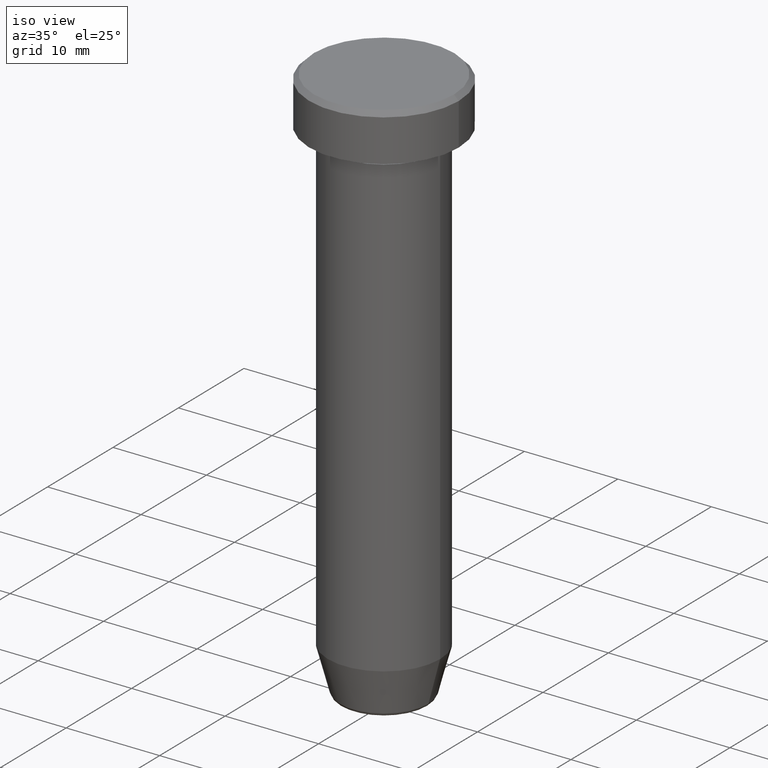
[diagram: clean part render]
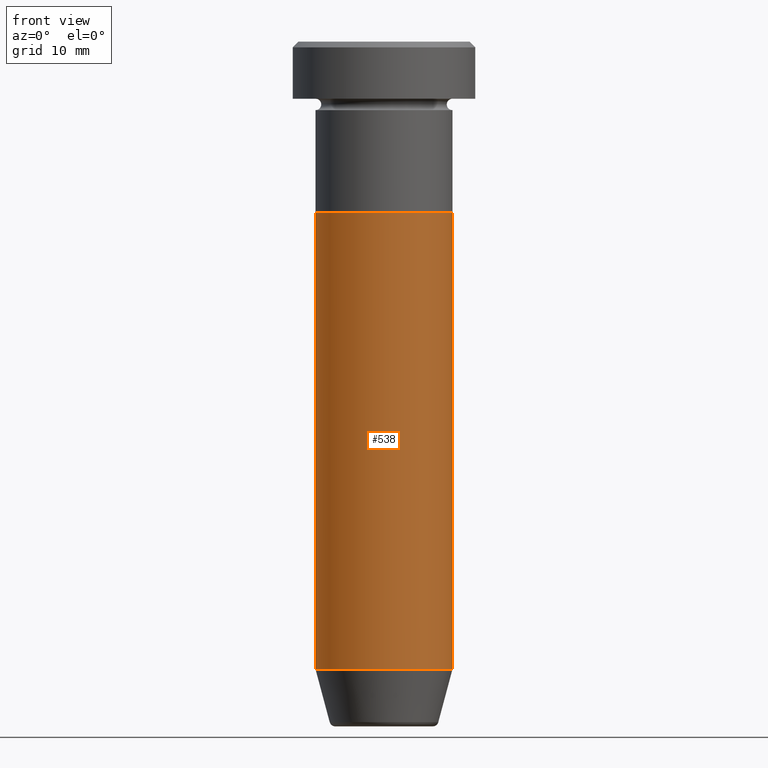
[diagram: tour spotlight — one face highlighted and labeled with its STEP entity id]
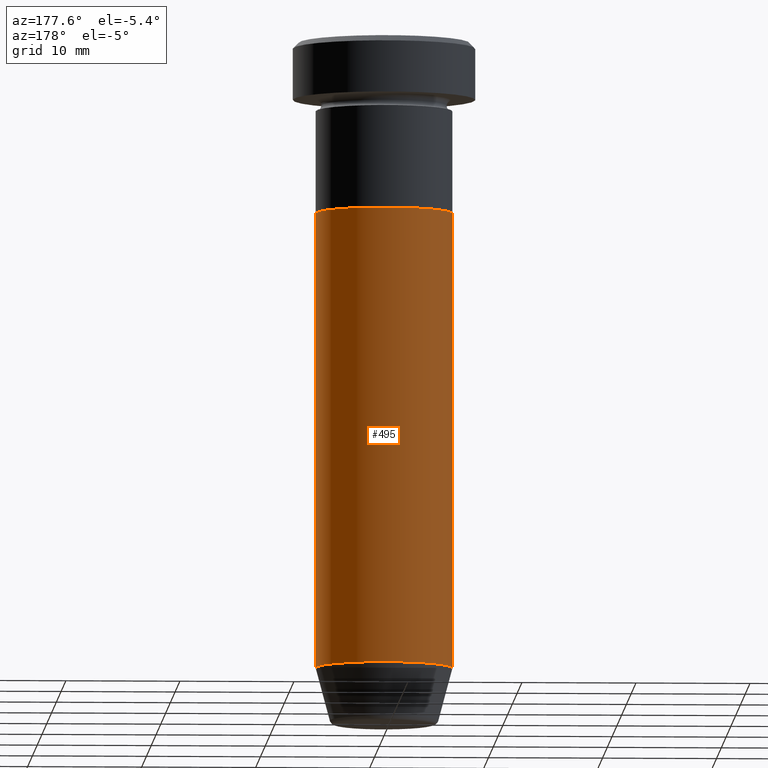
[diagram: tour spotlight — one face highlighted and labeled with its STEP entity id]
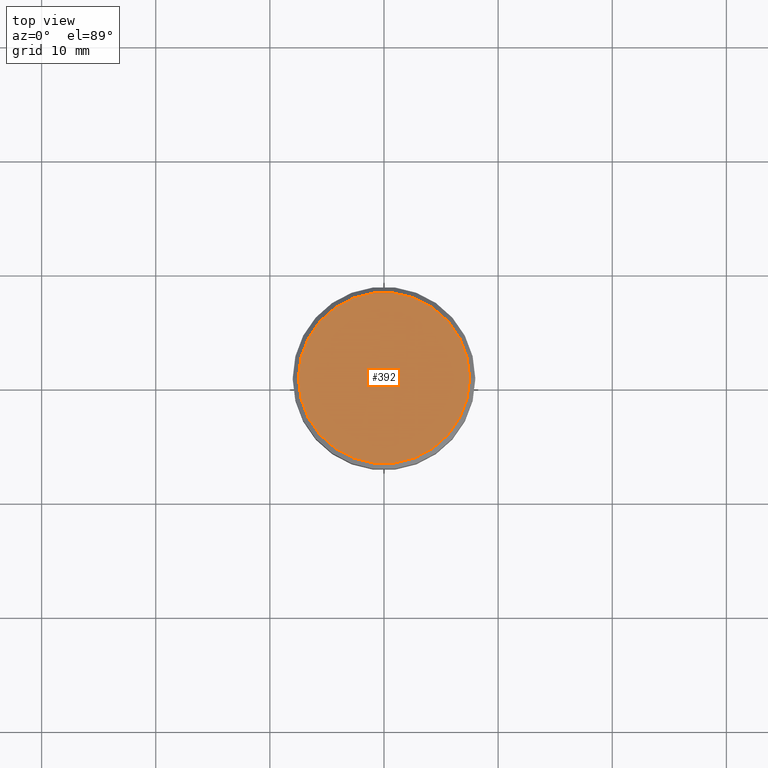
[diagram: tour spotlight — one face highlighted and labeled with its STEP entity id]
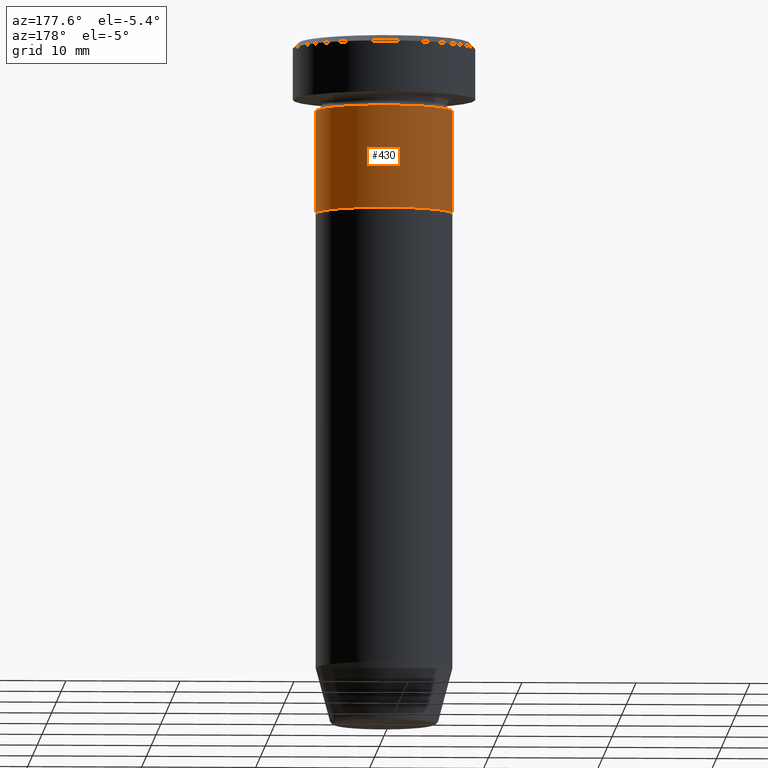
[diagram: tour spotlight — one face highlighted and labeled with its STEP entity id]
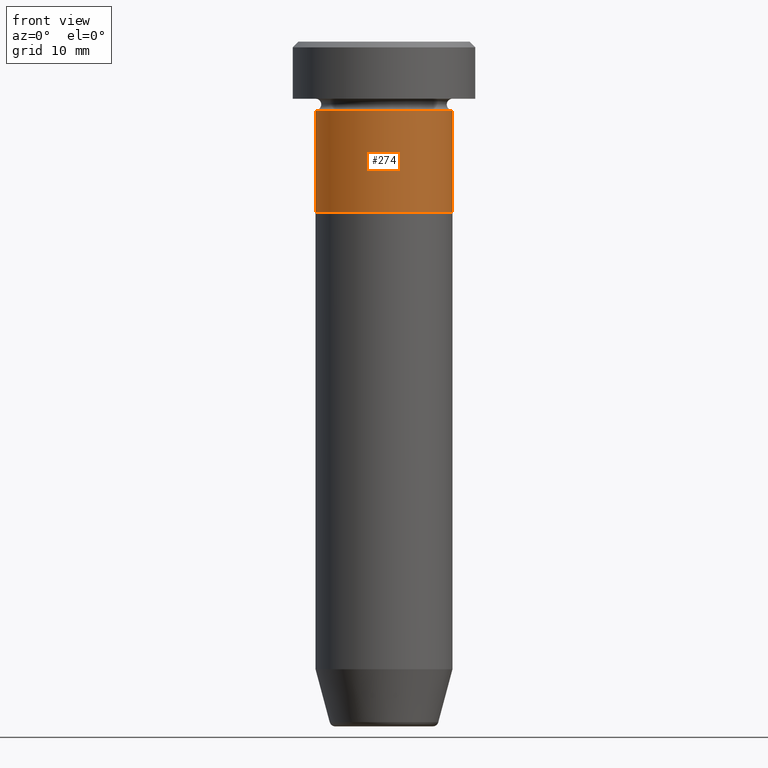
[diagram: tour spotlight — one face highlighted and labeled with its STEP entity id]
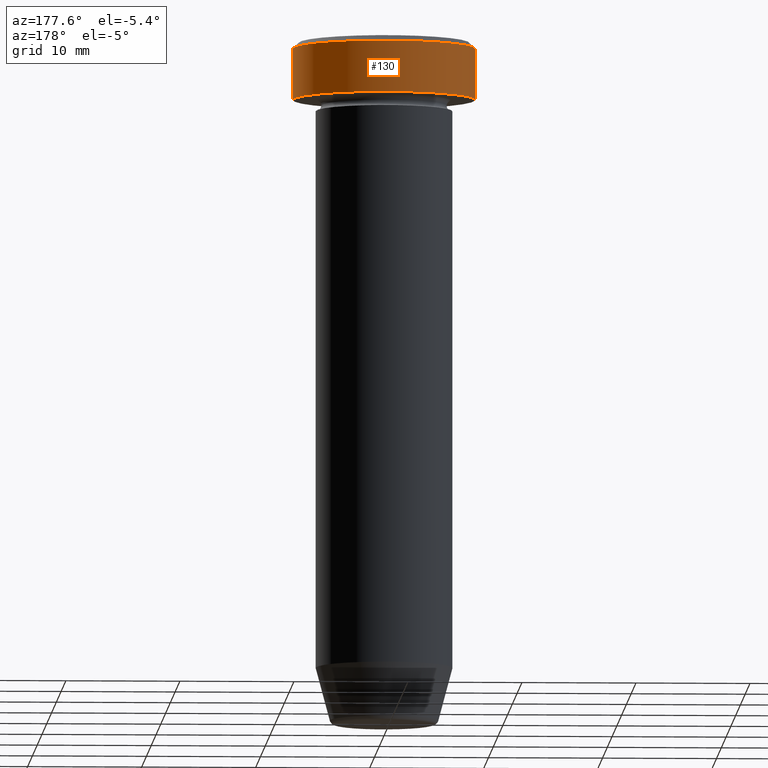
[diagram: tour spotlight — one face highlighted and labeled with its STEP entity id]
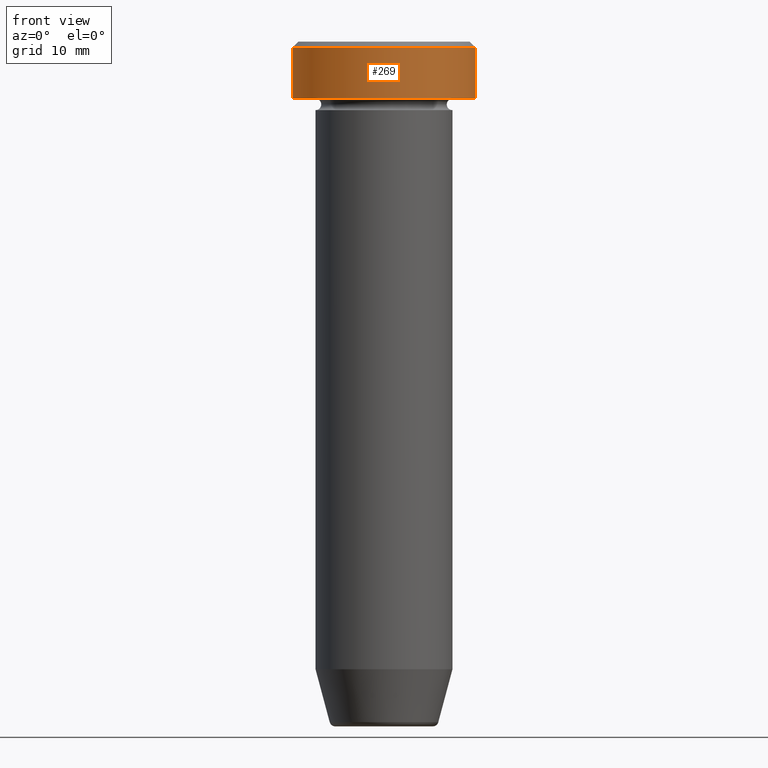
[diagram: tour spotlight — one face highlighted and labeled with its STEP entity id]
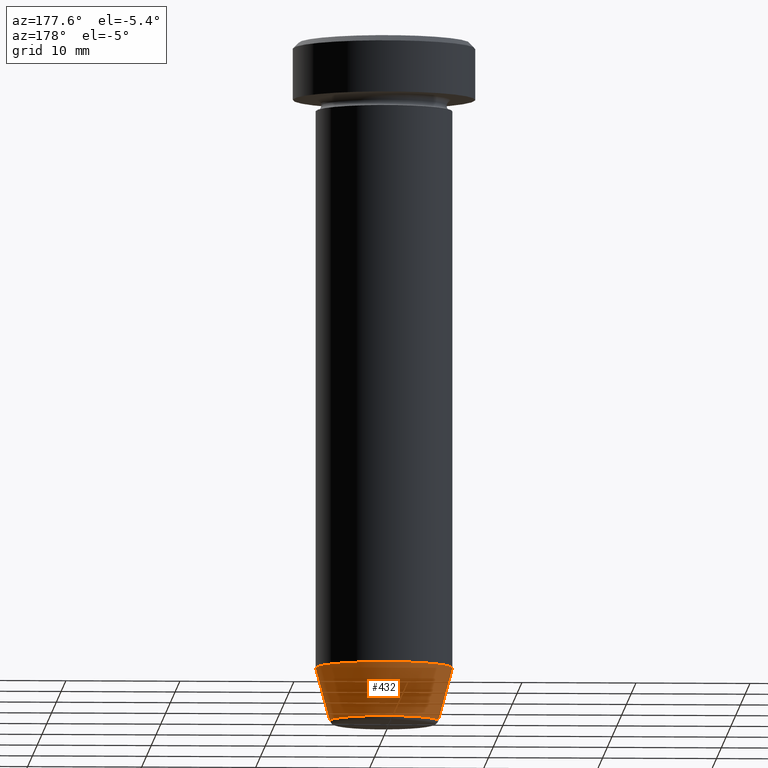
[diagram: tour spotlight — one face highlighted and labeled with its STEP entity id]
A machine part: a face-by-face anatomy tour. The part has 21 B-rep faces; the first image is the clean iso view, then the 8 largest visible faces are spotlighted one at a time (largest first), each with its STEP entity span.

Face 1 — front view, entity #538. In plain terms, the highlighted cylindrical surface (partial cylindrical patch) has radius 6 mm, axis along (-0, -0, 1).
Definition (entity closure, byte-faithful):
#7 = CARTESIAN_POINT ( 'NONE',  ( -6.000000000000000000, 7.347880794884119736E-16, 0.000000000000000000 ) ) ;
#18 = CARTESIAN_POINT ( 'NONE',  ( 6.000000000000000000, 0.000000000000000000, -54.99999999999999289 ) ) ;
#20 = DIRECTION ( 'NONE',  ( -0.000000000000000000, -0.000000000000000000, 1.000000000000000000 ) ) ;
#31 = FACE_OUTER_BOUND ( 'NONE', #588, .T. ) ;
#36 = ORIENTED_EDGE ( 'NONE', *, *, #518, .T. ) ;
#72 = VERTEX_POINT ( 'NONE', #417 ) ;
#85 = ORIENTED_EDGE ( 'NONE', *, *, #362, .F. ) ;
#117 = CARTESIAN_POINT ( 'NONE',  ( 0.000000000000000000, 0.000000000000000000, -15.00000000000000000 ) ) ;
#187 = LINE ( 'NONE', #7, #509 ) ;
#214 = CARTESIAN_POINT ( 'NONE',  ( 0.000000000000000000, 0.000000000000000000, 0.000000000000000000 ) ) ;
#224 = AXIS2_PLACEMENT_3D ( 'NONE', #214, #402, #597 ) ;
#226 = VERTEX_POINT ( 'NONE', #18 ) ;
#232 = AXIS2_PLACEMENT_3D ( 'NONE', #537, #349, #303 ) ;
#264 = VERTEX_POINT ( 'NONE', #481 ) ;
#285 = CARTESIAN_POINT ( 'NONE',  ( -6.000000000000000000, 7.347880794884119736E-16, -54.99999999999999289 ) ) ;
#290 = AXIS2_PLACEMENT_3D ( 'NONE', #117, #494, #442 ) ;
#303 = DIRECTION ( 'NONE',  ( 1.000000000000000000, 0.000000000000000000, 0.000000000000000000 ) ) ;
#313 = ORIENTED_EDGE ( 'NONE', *, *, #463, .T. ) ;
#317 = VERTEX_POINT ( 'NONE', #285 ) ;
#349 = DIRECTION ( 'NONE',  ( -0.000000000000000000, -0.000000000000000000, 1.000000000000000000 ) ) ;
#362 = EDGE_CURVE ( 'NONE', #317, #72, #187, .T. ) ;
#402 = DIRECTION ( 'NONE',  ( -0.000000000000000000, -0.000000000000000000, 1.000000000000000000 ) ) ;
#417 = CARTESIAN_POINT ( 'NONE',  ( -6.000000000000000000, 7.347880794884119736E-16, -15.00000000000000000 ) ) ;
#442 = DIRECTION ( 'NONE',  ( 1.000000000000000000, 0.000000000000000000, 0.000000000000000000 ) ) ;
#463 = EDGE_CURVE ( 'NONE', #226, #264, #532, .T. ) ;
#472 = DIRECTION ( 'NONE',  ( -0.000000000000000000, -0.000000000000000000, 1.000000000000000000 ) ) ;
#478 = CIRCLE ( 'NONE', #290, 6.000000000000000000 ) ;
#479 = EDGE_CURVE ( 'NONE', #72, #264, #478, .T. ) ;
#481 = CARTESIAN_POINT ( 'NONE',  ( 6.000000000000000000, 0.000000000000000000, -15.00000000000000000 ) ) ;
#489 = CIRCLE ( 'NONE', #232, 6.000000000000000000 ) ;
#490 = CYLINDRICAL_SURFACE ( 'NONE', #224, 6.000000000000000000 ) ;
#494 = DIRECTION ( 'NONE',  ( -0.000000000000000000, -0.000000000000000000, 1.000000000000000000 ) ) ;
#509 = VECTOR ( 'NONE', #472, 1000.000000000000000 ) ;
#518 = EDGE_CURVE ( 'NONE', #317, #226, #489, .T. ) ;
#522 = VECTOR ( 'NONE', #20, 1000.000000000000000 ) ;
#530 = ORIENTED_EDGE ( 'NONE', *, *, #479, .F. ) ;
#532 = LINE ( 'NONE', #581, #522 ) ;
#537 = CARTESIAN_POINT ( 'NONE',  ( 0.000000000000000000, 0.000000000000000000, -54.99999999999999289 ) ) ;
#538 = ADVANCED_FACE ( 'NONE', ( #31 ), #490, .T. ) ;
#581 = CARTESIAN_POINT ( 'NONE',  ( 6.000000000000000000, 0.000000000000000000, 0.000000000000000000 ) ) ;
#588 = EDGE_LOOP ( 'NONE', ( #85, #36, #313, #530 ) ) ;
#597 = DIRECTION ( 'NONE',  ( 1.000000000000000000, 0.000000000000000000, 0.000000000000000000 ) ) ;

Face 2 — auxiliary view, entity #495. In plain terms, the highlighted cylindrical surface (partial cylindrical patch) has radius 6 mm, axis along (-0, -0, 1).
Definition (entity closure, byte-faithful):
#7 = CARTESIAN_POINT ( 'NONE',  ( -6.000000000000000000, 7.347880794884119736E-16, 0.000000000000000000 ) ) ;
#18 = CARTESIAN_POINT ( 'NONE',  ( 6.000000000000000000, 0.000000000000000000, -54.99999999999999289 ) ) ;
#20 = DIRECTION ( 'NONE',  ( -0.000000000000000000, -0.000000000000000000, 1.000000000000000000 ) ) ;
#24 = DIRECTION ( 'NONE',  ( 1.000000000000000000, 0.000000000000000000, 0.000000000000000000 ) ) ;
#27 = FACE_OUTER_BOUND ( 'NONE', #583, .T. ) ;
#71 = CARTESIAN_POINT ( 'NONE',  ( 0.000000000000000000, 0.000000000000000000, 0.000000000000000000 ) ) ;
#72 = VERTEX_POINT ( 'NONE', #417 ) ;
#108 = DIRECTION ( 'NONE',  ( 1.000000000000000000, 0.000000000000000000, 0.000000000000000000 ) ) ;
#159 = CARTESIAN_POINT ( 'NONE',  ( 0.000000000000000000, 0.000000000000000000, -54.99999999999999289 ) ) ;
#164 = CARTESIAN_POINT ( 'NONE',  ( 0.000000000000000000, 0.000000000000000000, -15.00000000000000000 ) ) ;
#168 = DIRECTION ( 'NONE',  ( -0.000000000000000000, -0.000000000000000000, 1.000000000000000000 ) ) ;
#175 = ORIENTED_EDGE ( 'NONE', *, *, #469, .T. ) ;
#176 = EDGE_CURVE ( 'NONE', #264, #72, #512, .T. ) ;
#178 = CIRCLE ( 'NONE', #520, 6.000000000000000000 ) ;
#179 = ORIENTED_EDGE ( 'NONE', *, *, #463, .F. ) ;
#187 = LINE ( 'NONE', #7, #509 ) ;
#220 = ORIENTED_EDGE ( 'NONE', *, *, #362, .T. ) ;
#226 = VERTEX_POINT ( 'NONE', #18 ) ;
#264 = VERTEX_POINT ( 'NONE', #481 ) ;
#285 = CARTESIAN_POINT ( 'NONE',  ( -6.000000000000000000, 7.347880794884119736E-16, -54.99999999999999289 ) ) ;
#296 = CYLINDRICAL_SURFACE ( 'NONE', #368, 6.000000000000000000 ) ;
#312 = ORIENTED_EDGE ( 'NONE', *, *, #176, .F. ) ;
#317 = VERTEX_POINT ( 'NONE', #285 ) ;
#351 = DIRECTION ( 'NONE',  ( -0.000000000000000000, -0.000000000000000000, 1.000000000000000000 ) ) ;
#362 = EDGE_CURVE ( 'NONE', #317, #72, #187, .T. ) ;
#368 = AXIS2_PLACEMENT_3D ( 'NONE', #71, #351, #484 ) ;
#398 = AXIS2_PLACEMENT_3D ( 'NONE', #164, #437, #24 ) ;
#417 = CARTESIAN_POINT ( 'NONE',  ( -6.000000000000000000, 7.347880794884119736E-16, -15.00000000000000000 ) ) ;
#437 = DIRECTION ( 'NONE',  ( -0.000000000000000000, -0.000000000000000000, 1.000000000000000000 ) ) ;
#463 = EDGE_CURVE ( 'NONE', #226, #264, #532, .T. ) ;
#469 = EDGE_CURVE ( 'NONE', #226, #317, #178, .T. ) ;
#472 = DIRECTION ( 'NONE',  ( -0.000000000000000000, -0.000000000000000000, 1.000000000000000000 ) ) ;
#481 = CARTESIAN_POINT ( 'NONE',  ( 6.000000000000000000, 0.000000000000000000, -15.00000000000000000 ) ) ;
#484 = DIRECTION ( 'NONE',  ( 1.000000000000000000, 0.000000000000000000, 0.000000000000000000 ) ) ;
#495 = ADVANCED_FACE ( 'NONE', ( #27 ), #296, .T. ) ;
#509 = VECTOR ( 'NONE', #472, 1000.000000000000000 ) ;
#512 = CIRCLE ( 'NONE', #398, 6.000000000000000000 ) ;
#520 = AXIS2_PLACEMENT_3D ( 'NONE', #159, #168, #108 ) ;
#522 = VECTOR ( 'NONE', #20, 1000.000000000000000 ) ;
#532 = LINE ( 'NONE', #581, #522 ) ;
#581 = CARTESIAN_POINT ( 'NONE',  ( 6.000000000000000000, 0.000000000000000000, 0.000000000000000000 ) ) ;
#583 = EDGE_LOOP ( 'NONE', ( #175, #220, #312, #179 ) ) ;

Face 3 — top view, entity #392. In plain terms, the highlighted planar face has unit normal (0, -0, 1).
Definition (entity closure, byte-faithful):
#16 = CARTESIAN_POINT ( 'NONE',  ( 0.000000000000000000, 0.000000000000000000, 0.000000000000000000 ) ) ;
#19 = CIRCLE ( 'NONE', #415, 7.499999999999992895 ) ;
#22 = VERTEX_POINT ( 'NONE', #467 ) ;
#32 = CIRCLE ( 'NONE', #148, 7.499999999999992895 ) ;
#64 = ORIENTED_EDGE ( 'NONE', *, *, #483, .T. ) ;
#89 = AXIS2_PLACEMENT_3D ( 'NONE', #16, #515, #146 ) ;
#113 = CARTESIAN_POINT ( 'NONE',  ( 0.000000000000000000, 0.000000000000000000, 0.000000000000000000 ) ) ;
#119 = VERTEX_POINT ( 'NONE', #333 ) ;
#146 = DIRECTION ( 'NONE',  ( 1.000000000000000000, 0.000000000000000000, 0.000000000000000000 ) ) ;
#148 = AXIS2_PLACEMENT_3D ( 'NONE', #438, #258, #167 ) ;
#156 = DIRECTION ( 'NONE',  ( -0.000000000000000000, -0.000000000000000000, 1.000000000000000000 ) ) ;
#167 = DIRECTION ( 'NONE',  ( 1.000000000000000000, 0.000000000000000000, 0.000000000000000000 ) ) ;
#216 = ORIENTED_EDGE ( 'NONE', *, *, #228, .T. ) ;
#228 = EDGE_CURVE ( 'NONE', #119, #22, #19, .T. ) ;
#258 = DIRECTION ( 'NONE',  ( -0.000000000000000000, -0.000000000000000000, 1.000000000000000000 ) ) ;
#287 = PLANE ( 'NONE',  #89 ) ;
#333 = CARTESIAN_POINT ( 'NONE',  ( 7.499999999999992895, 9.491012693391981871E-16, 0.000000000000000000 ) ) ;
#365 = EDGE_LOOP ( 'NONE', ( #64, #216 ) ) ;
#392 = ADVANCED_FACE ( 'NONE', ( #566 ), #287, .T. ) ;
#415 = AXIS2_PLACEMENT_3D ( 'NONE', #113, #156, #434 ) ;
#434 = DIRECTION ( 'NONE',  ( 1.000000000000000000, 0.000000000000000000, 0.000000000000000000 ) ) ;
#438 = CARTESIAN_POINT ( 'NONE',  ( 0.000000000000000000, 0.000000000000000000, 0.000000000000000000 ) ) ;
#467 = CARTESIAN_POINT ( 'NONE',  ( -7.499999999999992895, 0.000000000000000000, 0.000000000000000000 ) ) ;
#483 = EDGE_CURVE ( 'NONE', #22, #119, #32, .T. ) ;
#515 = DIRECTION ( 'NONE',  ( 0.000000000000000000, -0.000000000000000000, 1.000000000000000000 ) ) ;
#566 = FACE_OUTER_BOUND ( 'NONE', #365, .T. ) ;

Face 4 — auxiliary view, entity #430. In plain terms, the highlighted cylindrical surface (partial cylindrical patch) has radius 6 mm, axis along (-0, -0, 1).
Definition (entity closure, byte-faithful):
#30 = VERTEX_POINT ( 'NONE', #48 ) ;
#48 = CARTESIAN_POINT ( 'NONE',  ( -6.000000000000000000, 7.347880794884119736E-16, -15.00000000000000000 ) ) ;
#51 = AXIS2_PLACEMENT_3D ( 'NONE', #201, #255, #298 ) ;
#69 = DIRECTION ( 'NONE',  ( -0.000000000000000000, -0.000000000000000000, 1.000000000000000000 ) ) ;
#114 = ORIENTED_EDGE ( 'NONE', *, *, #149, .T. ) ;
#123 = ORIENTED_EDGE ( 'NONE', *, *, #545, .T. ) ;
#140 = AXIS2_PLACEMENT_3D ( 'NONE', #543, #300, #249 ) ;
#149 = EDGE_CURVE ( 'NONE', #30, #218, #488, .T. ) ;
#182 = VERTEX_POINT ( 'NONE', #198 ) ;
#190 = EDGE_CURVE ( 'NONE', #330, #218, #445, .T. ) ;
#193 = VECTOR ( 'NONE', #592, 1000.000000000000000 ) ;
#198 = CARTESIAN_POINT ( 'NONE',  ( 6.000000000000000000, 0.000000000000000000, -15.00000000000000000 ) ) ;
#201 = CARTESIAN_POINT ( 'NONE',  ( 0.000000000000000000, 0.000000000000000000, -6.000000000000000000 ) ) ;
#204 = CARTESIAN_POINT ( 'NONE',  ( -6.000000000000000000, 7.347880794884119736E-16, -6.000000000000000000 ) ) ;
#218 = VERTEX_POINT ( 'NONE', #204 ) ;
#249 = DIRECTION ( 'NONE',  ( 1.000000000000000000, 0.000000000000000000, 0.000000000000000000 ) ) ;
#255 = DIRECTION ( 'NONE',  ( -0.000000000000000000, -0.000000000000000000, 1.000000000000000000 ) ) ;
#271 = LINE ( 'NONE', #457, #193 ) ;
#272 = ORIENTED_EDGE ( 'NONE', *, *, #190, .F. ) ;
#291 = CARTESIAN_POINT ( 'NONE',  ( 6.000000000000000000, 0.000000000000000000, -6.000000000000000000 ) ) ;
#298 = DIRECTION ( 'NONE',  ( 1.000000000000000000, 0.000000000000000000, 0.000000000000000000 ) ) ;
#300 = DIRECTION ( 'NONE',  ( -0.000000000000000000, -0.000000000000000000, 1.000000000000000000 ) ) ;
#310 = AXIS2_PLACEMENT_3D ( 'NONE', #364, #448, #554 ) ;
#330 = VERTEX_POINT ( 'NONE', #291 ) ;
#350 = CARTESIAN_POINT ( 'NONE',  ( -6.000000000000000000, 7.347880794884119736E-16, 0.000000000000000000 ) ) ;
#353 = FACE_OUTER_BOUND ( 'NONE', #502, .T. ) ;
#364 = CARTESIAN_POINT ( 'NONE',  ( 0.000000000000000000, 0.000000000000000000, -15.00000000000000000 ) ) ;
#409 = ORIENTED_EDGE ( 'NONE', *, *, #552, .F. ) ;
#430 = ADVANCED_FACE ( 'NONE', ( #353 ), #582, .T. ) ;
#445 = CIRCLE ( 'NONE', #51, 6.000000000000000000 ) ;
#448 = DIRECTION ( 'NONE',  ( -0.000000000000000000, -0.000000000000000000, 1.000000000000000000 ) ) ;
#457 = CARTESIAN_POINT ( 'NONE',  ( 6.000000000000000000, 0.000000000000000000, 0.000000000000000000 ) ) ;
#458 = CIRCLE ( 'NONE', #310, 6.000000000000000000 ) ;
#471 = VECTOR ( 'NONE', #69, 1000.000000000000000 ) ;
#488 = LINE ( 'NONE', #350, #471 ) ;
#502 = EDGE_LOOP ( 'NONE', ( #123, #114, #272, #409 ) ) ;
#543 = CARTESIAN_POINT ( 'NONE',  ( 0.000000000000000000, 0.000000000000000000, 0.000000000000000000 ) ) ;
#545 = EDGE_CURVE ( 'NONE', #182, #30, #458, .T. ) ;
#552 = EDGE_CURVE ( 'NONE', #182, #330, #271, .T. ) ;
#554 = DIRECTION ( 'NONE',  ( 1.000000000000000000, 0.000000000000000000, 0.000000000000000000 ) ) ;
#582 = CYLINDRICAL_SURFACE ( 'NONE', #140, 6.000000000000000000 ) ;
#592 = DIRECTION ( 'NONE',  ( -0.000000000000000000, -0.000000000000000000, 1.000000000000000000 ) ) ;

Face 5 — front view, entity #274. In plain terms, the highlighted cylindrical surface (partial cylindrical patch) has radius 6 mm, axis along (-0, -0, 1).
Definition (entity closure, byte-faithful):
#30 = VERTEX_POINT ( 'NONE', #48 ) ;
#41 = AXIS2_PLACEMENT_3D ( 'NONE', #96, #99, #155 ) ;
#42 = EDGE_LOOP ( 'NONE', ( #363, #357, #346, #126 ) ) ;
#48 = CARTESIAN_POINT ( 'NONE',  ( -6.000000000000000000, 7.347880794884119736E-16, -15.00000000000000000 ) ) ;
#69 = DIRECTION ( 'NONE',  ( -0.000000000000000000, -0.000000000000000000, 1.000000000000000000 ) ) ;
#73 = AXIS2_PLACEMENT_3D ( 'NONE', #439, #535, #443 ) ;
#96 = CARTESIAN_POINT ( 'NONE',  ( 0.000000000000000000, 0.000000000000000000, 0.000000000000000000 ) ) ;
#99 = DIRECTION ( 'NONE',  ( -0.000000000000000000, -0.000000000000000000, 1.000000000000000000 ) ) ;
#104 = DIRECTION ( 'NONE',  ( 1.000000000000000000, 0.000000000000000000, 0.000000000000000000 ) ) ;
#109 = FACE_OUTER_BOUND ( 'NONE', #42, .T. ) ;
#126 = ORIENTED_EDGE ( 'NONE', *, *, #197, .F. ) ;
#129 = AXIS2_PLACEMENT_3D ( 'NONE', #565, #563, #104 ) ;
#149 = EDGE_CURVE ( 'NONE', #30, #218, #488, .T. ) ;
#155 = DIRECTION ( 'NONE',  ( 1.000000000000000000, 0.000000000000000000, 0.000000000000000000 ) ) ;
#180 = CIRCLE ( 'NONE', #73, 6.000000000000000000 ) ;
#182 = VERTEX_POINT ( 'NONE', #198 ) ;
#193 = VECTOR ( 'NONE', #592, 1000.000000000000000 ) ;
#197 = EDGE_CURVE ( 'NONE', #218, #330, #180, .T. ) ;
#198 = CARTESIAN_POINT ( 'NONE',  ( 6.000000000000000000, 0.000000000000000000, -15.00000000000000000 ) ) ;
#204 = CARTESIAN_POINT ( 'NONE',  ( -6.000000000000000000, 7.347880794884119736E-16, -6.000000000000000000 ) ) ;
#218 = VERTEX_POINT ( 'NONE', #204 ) ;
#250 = CYLINDRICAL_SURFACE ( 'NONE', #41, 6.000000000000000000 ) ;
#271 = LINE ( 'NONE', #457, #193 ) ;
#274 = ADVANCED_FACE ( 'NONE', ( #109 ), #250, .T. ) ;
#291 = CARTESIAN_POINT ( 'NONE',  ( 6.000000000000000000, 0.000000000000000000, -6.000000000000000000 ) ) ;
#330 = VERTEX_POINT ( 'NONE', #291 ) ;
#335 = EDGE_CURVE ( 'NONE', #30, #182, #420, .T. ) ;
#346 = ORIENTED_EDGE ( 'NONE', *, *, #552, .T. ) ;
#350 = CARTESIAN_POINT ( 'NONE',  ( -6.000000000000000000, 7.347880794884119736E-16, 0.000000000000000000 ) ) ;
#357 = ORIENTED_EDGE ( 'NONE', *, *, #335, .T. ) ;
#363 = ORIENTED_EDGE ( 'NONE', *, *, #149, .F. ) ;
#420 = CIRCLE ( 'NONE', #129, 6.000000000000000000 ) ;
#439 = CARTESIAN_POINT ( 'NONE',  ( 0.000000000000000000, 0.000000000000000000, -6.000000000000000000 ) ) ;
#443 = DIRECTION ( 'NONE',  ( 1.000000000000000000, 0.000000000000000000, 0.000000000000000000 ) ) ;
#457 = CARTESIAN_POINT ( 'NONE',  ( 6.000000000000000000, 0.000000000000000000, 0.000000000000000000 ) ) ;
#471 = VECTOR ( 'NONE', #69, 1000.000000000000000 ) ;
#488 = LINE ( 'NONE', #350, #471 ) ;
#535 = DIRECTION ( 'NONE',  ( -0.000000000000000000, -0.000000000000000000, 1.000000000000000000 ) ) ;
#552 = EDGE_CURVE ( 'NONE', #182, #330, #271, .T. ) ;
#563 = DIRECTION ( 'NONE',  ( -0.000000000000000000, -0.000000000000000000, 1.000000000000000000 ) ) ;
#565 = CARTESIAN_POINT ( 'NONE',  ( 0.000000000000000000, 0.000000000000000000, -15.00000000000000000 ) ) ;
#592 = DIRECTION ( 'NONE',  ( -0.000000000000000000, -0.000000000000000000, 1.000000000000000000 ) ) ;

Face 6 — auxiliary view, entity #130. In plain terms, the highlighted cylindrical surface (partial cylindrical patch) has radius 8 mm, axis along (-0, -0, 1).
Definition (entity closure, byte-faithful):
#3 = DIRECTION ( 'NONE',  ( -0.000000000000000000, -0.000000000000000000, 1.000000000000000000 ) ) ;
#4 = CARTESIAN_POINT ( 'NONE',  ( 0.000000000000000000, 0.000000000000000000, -5.000000000000000000 ) ) ;
#21 = DIRECTION ( 'NONE',  ( 1.000000000000000000, 0.000000000000000000, 0.000000000000000000 ) ) ;
#23 = LINE ( 'NONE', #121, #118 ) ;
#54 = DIRECTION ( 'NONE',  ( -0.000000000000000000, -0.000000000000000000, 1.000000000000000000 ) ) ;
#70 = AXIS2_PLACEMENT_3D ( 'NONE', #487, #206, #540 ) ;
#75 = CARTESIAN_POINT ( 'NONE',  ( 8.000000000000000000, 0.000000000000000000, -5.000000000000000000 ) ) ;
#84 = EDGE_CURVE ( 'NONE', #508, #405, #142, .T. ) ;
#98 = FACE_OUTER_BOUND ( 'NONE', #542, .T. ) ;
#105 = CIRCLE ( 'NONE', #70, 8.000000000000000000 ) ;
#111 = ORIENTED_EDGE ( 'NONE', *, *, #366, .T. ) ;
#118 = VECTOR ( 'NONE', #202, 1000.000000000000000 ) ;
#121 = CARTESIAN_POINT ( 'NONE',  ( 8.000000000000000000, 0.000000000000000000, 0.000000000000000000 ) ) ;
#130 = ADVANCED_FACE ( 'NONE', ( #98 ), #284, .T. ) ;
#142 = LINE ( 'NONE', #375, #423 ) ;
#202 = DIRECTION ( 'NONE',  ( -0.000000000000000000, -0.000000000000000000, 1.000000000000000000 ) ) ;
#203 = CIRCLE ( 'NONE', #263, 8.000000000000000000 ) ;
#206 = DIRECTION ( 'NONE',  ( 0.000000000000000000, 0.000000000000000000, -1.000000000000000000 ) ) ;
#235 = ORIENTED_EDGE ( 'NONE', *, *, #511, .F. ) ;
#257 = AXIS2_PLACEMENT_3D ( 'NONE', #568, #577, #21 ) ;
#263 = AXIS2_PLACEMENT_3D ( 'NONE', #4, #54, #373 ) ;
#284 = CYLINDRICAL_SURFACE ( 'NONE', #257, 8.000000000000000000 ) ;
#294 = ORIENTED_EDGE ( 'NONE', *, *, #84, .T. ) ;
#366 = EDGE_CURVE ( 'NONE', #491, #508, #203, .T. ) ;
#373 = DIRECTION ( 'NONE',  ( 1.000000000000000000, 0.000000000000000000, 0.000000000000000000 ) ) ;
#375 = CARTESIAN_POINT ( 'NONE',  ( -8.000000000000000000, 9.797174393178825657E-16, 0.000000000000000000 ) ) ;
#405 = VERTEX_POINT ( 'NONE', #476 ) ;
#406 = CARTESIAN_POINT ( 'NONE',  ( 8.000000000000000000, 0.000000000000000000, -0.5000000000000073275 ) ) ;
#423 = VECTOR ( 'NONE', #3, 1000.000000000000000 ) ;
#476 = CARTESIAN_POINT ( 'NONE',  ( -8.000000000000000000, 9.797174393178825657E-16, -0.5000000000000073275 ) ) ;
#486 = ORIENTED_EDGE ( 'NONE', *, *, #499, .T. ) ;
#487 = CARTESIAN_POINT ( 'NONE',  ( 0.000000000000000000, 0.000000000000000000, -0.5000000000000073275 ) ) ;
#491 = VERTEX_POINT ( 'NONE', #75 ) ;
#496 = CARTESIAN_POINT ( 'NONE',  ( -8.000000000000000000, 9.797174393178825657E-16, -5.000000000000000000 ) ) ;
#499 = EDGE_CURVE ( 'NONE', #405, #598, #105, .T. ) ;
#508 = VERTEX_POINT ( 'NONE', #496 ) ;
#511 = EDGE_CURVE ( 'NONE', #491, #598, #23, .T. ) ;
#540 = DIRECTION ( 'NONE',  ( 1.000000000000000000, 0.000000000000000000, 0.000000000000000000 ) ) ;
#542 = EDGE_LOOP ( 'NONE', ( #111, #294, #486, #235 ) ) ;
#568 = CARTESIAN_POINT ( 'NONE',  ( 0.000000000000000000, 0.000000000000000000, 0.000000000000000000 ) ) ;
#577 = DIRECTION ( 'NONE',  ( -0.000000000000000000, -0.000000000000000000, 1.000000000000000000 ) ) ;
#598 = VERTEX_POINT ( 'NONE', #406 ) ;

Face 7 — front view, entity #269. In plain terms, the highlighted cylindrical surface (partial cylindrical patch) has radius 8 mm, axis along (-0, -0, 1).
Definition (entity closure, byte-faithful):
#3 = DIRECTION ( 'NONE',  ( -0.000000000000000000, -0.000000000000000000, 1.000000000000000000 ) ) ;
#14 = ORIENTED_EDGE ( 'NONE', *, *, #84, .F. ) ;
#23 = LINE ( 'NONE', #121, #118 ) ;
#39 = ORIENTED_EDGE ( 'NONE', *, *, #511, .T. ) ;
#57 = EDGE_CURVE ( 'NONE', #598, #405, #133, .T. ) ;
#63 = FACE_OUTER_BOUND ( 'NONE', #569, .T. ) ;
#67 = DIRECTION ( 'NONE',  ( -0.000000000000000000, -0.000000000000000000, 1.000000000000000000 ) ) ;
#75 = CARTESIAN_POINT ( 'NONE',  ( 8.000000000000000000, 0.000000000000000000, -5.000000000000000000 ) ) ;
#81 = ORIENTED_EDGE ( 'NONE', *, *, #338, .T. ) ;
#84 = EDGE_CURVE ( 'NONE', #508, #405, #142, .T. ) ;
#118 = VECTOR ( 'NONE', #202, 1000.000000000000000 ) ;
#121 = CARTESIAN_POINT ( 'NONE',  ( 8.000000000000000000, 0.000000000000000000, 0.000000000000000000 ) ) ;
#133 = CIRCLE ( 'NONE', #324, 8.000000000000000000 ) ;
#139 = AXIS2_PLACEMENT_3D ( 'NONE', #345, #67, #533 ) ;
#142 = LINE ( 'NONE', #375, #423 ) ;
#150 = DIRECTION ( 'NONE',  ( 1.000000000000000000, 0.000000000000000000, 0.000000000000000000 ) ) ;
#161 = CYLINDRICAL_SURFACE ( 'NONE', #139, 8.000000000000000000 ) ;
#169 = CIRCLE ( 'NONE', #411, 8.000000000000000000 ) ;
#202 = DIRECTION ( 'NONE',  ( -0.000000000000000000, -0.000000000000000000, 1.000000000000000000 ) ) ;
#231 = DIRECTION ( 'NONE',  ( 1.000000000000000000, 0.000000000000000000, 0.000000000000000000 ) ) ;
#269 = ADVANCED_FACE ( 'NONE', ( #63 ), #161, .T. ) ;
#288 = DIRECTION ( 'NONE',  ( 0.000000000000000000, 0.000000000000000000, -1.000000000000000000 ) ) ;
#324 = AXIS2_PLACEMENT_3D ( 'NONE', #425, #288, #231 ) ;
#338 = EDGE_CURVE ( 'NONE', #508, #491, #169, .T. ) ;
#345 = CARTESIAN_POINT ( 'NONE',  ( 0.000000000000000000, 0.000000000000000000, 0.000000000000000000 ) ) ;
#375 = CARTESIAN_POINT ( 'NONE',  ( -8.000000000000000000, 9.797174393178825657E-16, 0.000000000000000000 ) ) ;
#405 = VERTEX_POINT ( 'NONE', #476 ) ;
#406 = CARTESIAN_POINT ( 'NONE',  ( 8.000000000000000000, 0.000000000000000000, -0.5000000000000073275 ) ) ;
#411 = AXIS2_PLACEMENT_3D ( 'NONE', #421, #433, #150 ) ;
#419 = ORIENTED_EDGE ( 'NONE', *, *, #57, .T. ) ;
#421 = CARTESIAN_POINT ( 'NONE',  ( 0.000000000000000000, 0.000000000000000000, -5.000000000000000000 ) ) ;
#423 = VECTOR ( 'NONE', #3, 1000.000000000000000 ) ;
#425 = CARTESIAN_POINT ( 'NONE',  ( 0.000000000000000000, 0.000000000000000000, -0.5000000000000073275 ) ) ;
#433 = DIRECTION ( 'NONE',  ( -0.000000000000000000, -0.000000000000000000, 1.000000000000000000 ) ) ;
#476 = CARTESIAN_POINT ( 'NONE',  ( -8.000000000000000000, 9.797174393178825657E-16, -0.5000000000000073275 ) ) ;
#491 = VERTEX_POINT ( 'NONE', #75 ) ;
#496 = CARTESIAN_POINT ( 'NONE',  ( -8.000000000000000000, 9.797174393178825657E-16, -5.000000000000000000 ) ) ;
#508 = VERTEX_POINT ( 'NONE', #496 ) ;
#511 = EDGE_CURVE ( 'NONE', #491, #598, #23, .T. ) ;
#533 = DIRECTION ( 'NONE',  ( 1.000000000000000000, 0.000000000000000000, 0.000000000000000000 ) ) ;
#569 = EDGE_LOOP ( 'NONE', ( #14, #81, #39, #419 ) ) ;
#598 = VERTEX_POINT ( 'NONE', #406 ) ;

Face 8 — auxiliary view, entity #432. In plain terms, the highlighted conical surface has half-angle 15 deg.
Definition (entity closure, byte-faithful):
#18 = CARTESIAN_POINT ( 'NONE',  ( 6.000000000000000000, 0.000000000000000000, -54.99999999999999289 ) ) ;
#25 = CIRCLE ( 'NONE', #555, 4.759553456999439547 ) ;
#66 = DIRECTION ( 'NONE',  ( 1.000000000000000000, 0.000000000000000000, 0.000000000000000000 ) ) ;
#78 = ORIENTED_EDGE ( 'NONE', *, *, #348, .T. ) ;
#86 = CARTESIAN_POINT ( 'NONE',  ( -4.660254037844383745, 5.707165190659652868E-16, -60.00000000000000000 ) ) ;
#95 = VERTEX_POINT ( 'NONE', #323 ) ;
#108 = DIRECTION ( 'NONE',  ( 1.000000000000000000, 0.000000000000000000, 0.000000000000000000 ) ) ;
#159 = CARTESIAN_POINT ( 'NONE',  ( 0.000000000000000000, 0.000000000000000000, -54.99999999999999289 ) ) ;
#162 = VECTOR ( 'NONE', #414, 1000.000000000000114 ) ;
#168 = DIRECTION ( 'NONE',  ( -0.000000000000000000, -0.000000000000000000, 1.000000000000000000 ) ) ;
#178 = CIRCLE ( 'NONE', #520, 6.000000000000000000 ) ;
#183 = LINE ( 'NONE', #86, #573 ) ;
#191 = DIRECTION ( 'NONE',  ( -1.000000000000000000, 0.000000000000000000, 0.000000000000000000 ) ) ;
#195 = EDGE_LOOP ( 'NONE', ( #78, #549, #259, #413 ) ) ;
#215 = AXIS2_PLACEMENT_3D ( 'NONE', #356, #436, #66 ) ;
#219 = DIRECTION ( 'NONE',  ( -0.2588190451025210170, 3.169619151431768639E-17, 0.9659258262890680902 ) ) ;
#225 = CARTESIAN_POINT ( 'NONE',  ( 4.660254037844383745, 0.000000000000000000, -60.00000000000000000 ) ) ;
#226 = VERTEX_POINT ( 'NONE', #18 ) ;
#259 = ORIENTED_EDGE ( 'NONE', *, *, #469, .F. ) ;
#273 = CONICAL_SURFACE ( 'NONE', #215, 4.660254037844383745, 0.2617993877991497409 ) ;
#285 = CARTESIAN_POINT ( 'NONE',  ( -6.000000000000000000, 7.347880794884119736E-16, -54.99999999999999289 ) ) ;
#317 = VERTEX_POINT ( 'NONE', #285 ) ;
#323 = CARTESIAN_POINT ( 'NONE',  ( 4.759553456999439547, 0.000000000000000000, -59.62940952255126348 ) ) ;
#348 = EDGE_CURVE ( 'NONE', #95, #455, #25, .T. ) ;
#356 = CARTESIAN_POINT ( 'NONE',  ( 0.000000000000000000, 0.000000000000000000, -60.00000000000000000 ) ) ;
#387 = DIRECTION ( 'NONE',  ( -0.000000000000000000, -0.000000000000000000, 1.000000000000000000 ) ) ;
#390 = FACE_OUTER_BOUND ( 'NONE', #195, .T. ) ;
#413 = ORIENTED_EDGE ( 'NONE', *, *, #587, .F. ) ;
#414 = DIRECTION ( 'NONE',  ( 0.2588190451025210170, 0.000000000000000000, 0.9659258262890680902 ) ) ;
#432 = ADVANCED_FACE ( 'NONE', ( #390 ), #273, .T. ) ;
#436 = DIRECTION ( 'NONE',  ( -0.000000000000000000, -0.000000000000000000, 1.000000000000000000 ) ) ;
#455 = VERTEX_POINT ( 'NONE', #571 ) ;
#469 = EDGE_CURVE ( 'NONE', #226, #317, #178, .T. ) ;
#520 = AXIS2_PLACEMENT_3D ( 'NONE', #159, #168, #108 ) ;
#541 = EDGE_CURVE ( 'NONE', #455, #317, #183, .T. ) ;
#546 = LINE ( 'NONE', #225, #162 ) ;
#549 = ORIENTED_EDGE ( 'NONE', *, *, #541, .T. ) ;
#555 = AXIS2_PLACEMENT_3D ( 'NONE', #557, #387, #191 ) ;
#557 = CARTESIAN_POINT ( 'NONE',  ( 0.000000000000000000, 0.000000000000000000, -59.62940952255126348 ) ) ;
#571 = CARTESIAN_POINT ( 'NONE',  ( -4.759553456999439547, 6.588326350684602264E-16, -59.62940952255126348 ) ) ;
#573 = VECTOR ( 'NONE', #219, 1000.000000000000114 ) ;
#587 = EDGE_CURVE ( 'NONE', #95, #226, #546, .T. ) ;